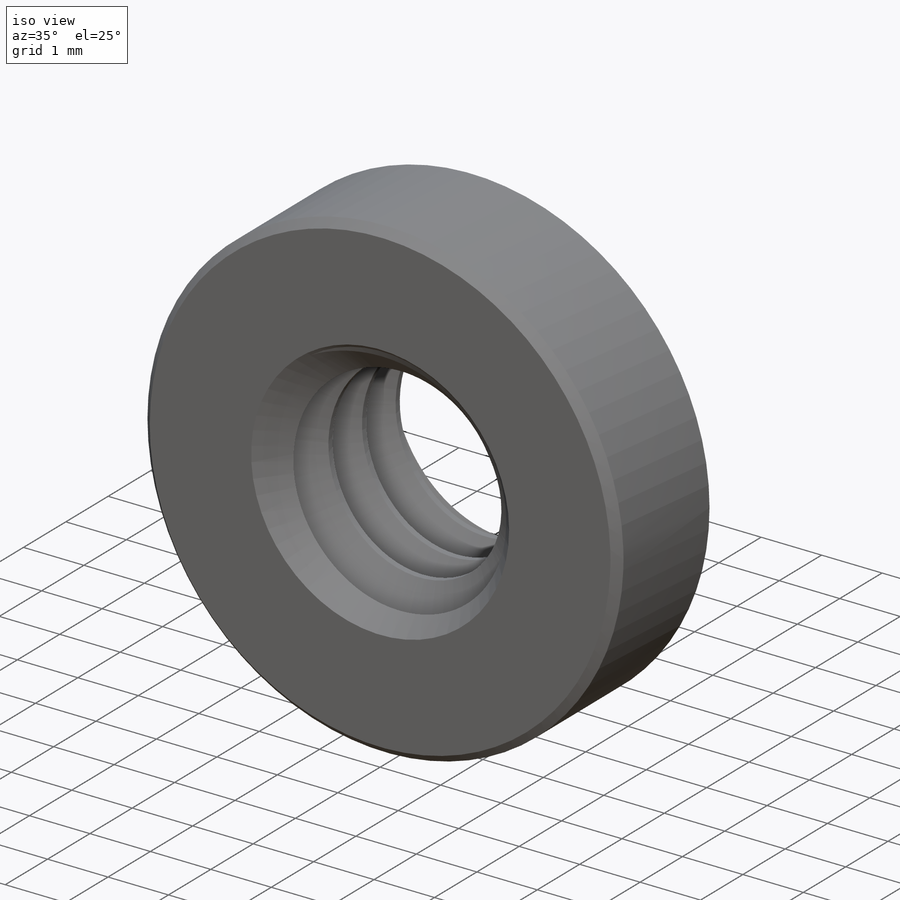
[diagram: iso view]
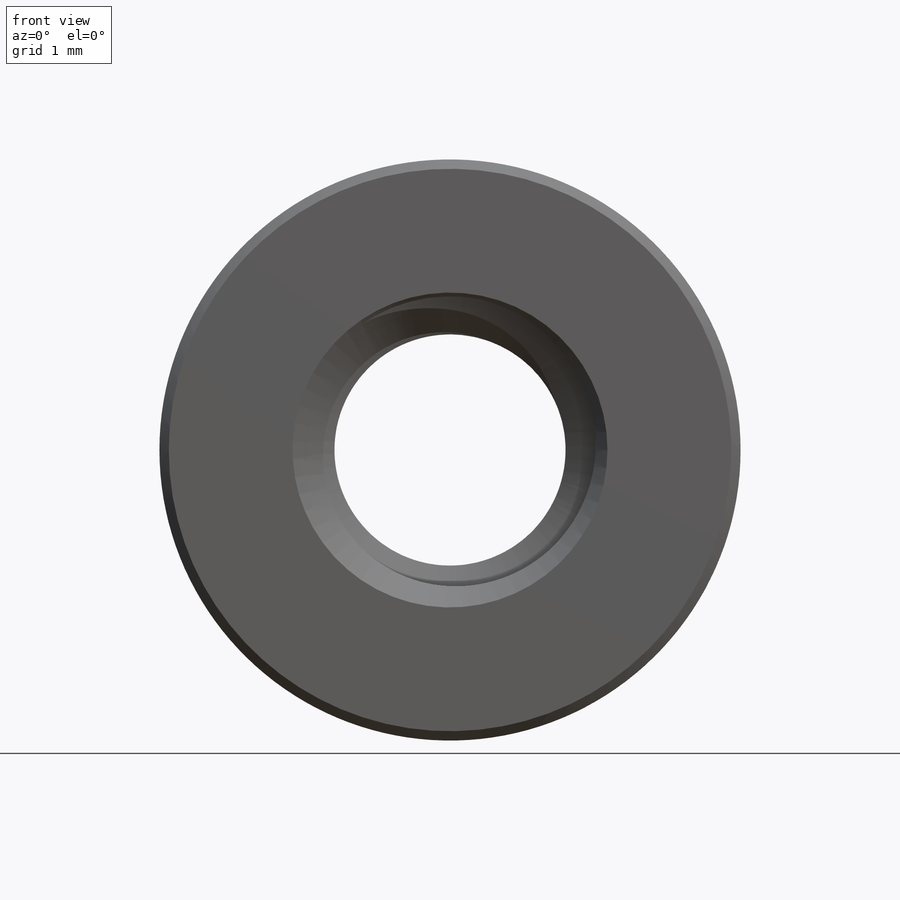
[diagram: front view]
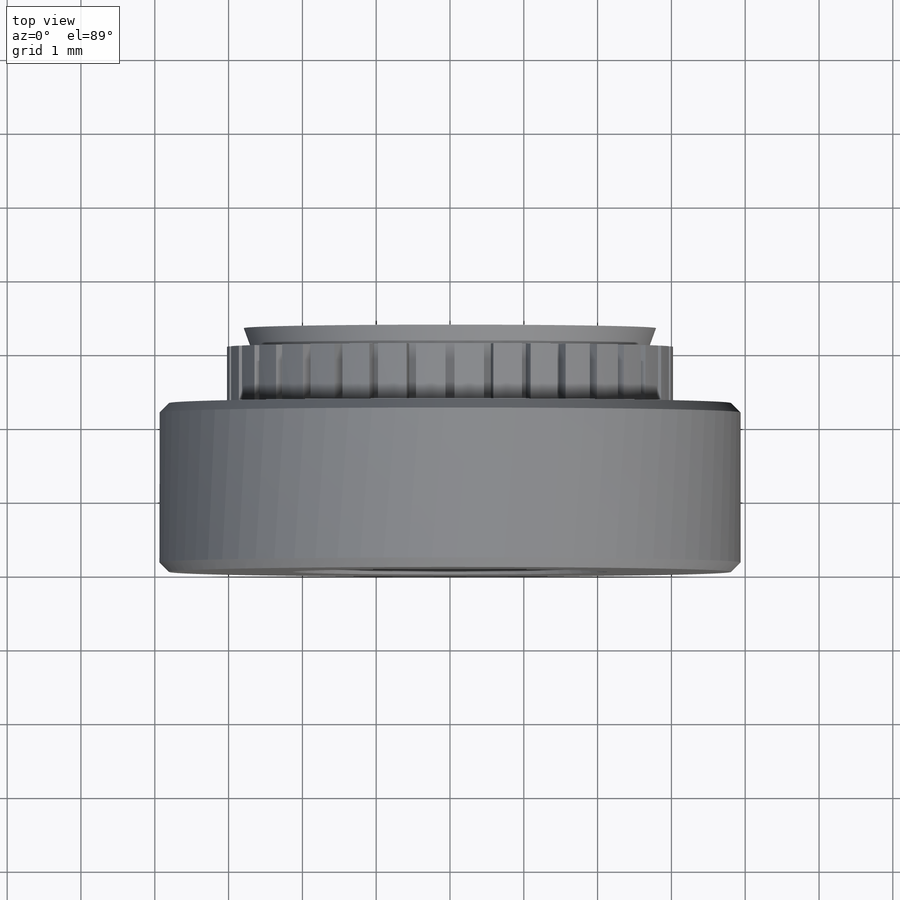
[diagram: top view]
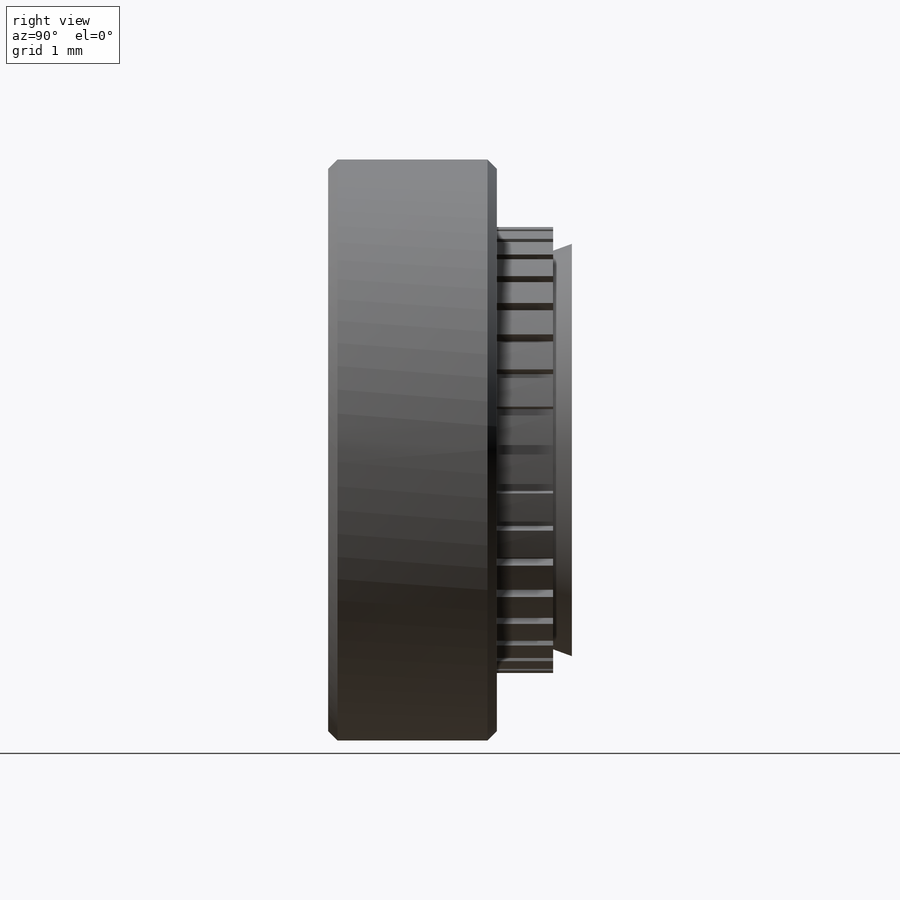
[diagram: right view]
SOLIDWORKS PART (.sldprt)
format: sldprt  version: not decoded by parser v0  size: 596,480 bytes
history: native  units: mm
features: sketch x12, cut_extrude x6, extrude x2, material x1, pattern_circular x1, chamfer x1, helix x1, sweep x1 (+13 scaffold rows collapsed)
feature tree (38):
  scaffold x13  (default folders/planes/origin — collapsed)
  material  "Material <not specified>"
  sketch  "Sketch1"  dims[A=7.874mm]
  extrude  "Extrude1"  Depth=2.286mm B=2.286mm
  sketch  "Sketch15"  dims[hole dia=5.4102mm]
  sketch  "Sketch2"  dims[C=6.3246mm hole Dia=6.3246mm D1=6.0452mm]
  extrude  "Extrude2"  Depth=1.016mm panel min.=1.016mm
  sketch  "Sketch3"  dims[D1=0.1905mm D5=0.127mm D6=1.0mm D7=5.0mm]
  pattern_circular  "CirPattern1"  Count=36 Angle=360deg
  sketch  "Sketch5"  dims[C=5.588mm D1=0.254mm]
  cut_extrude  "Cut-Extrude1"  Depth=0.254mm
  chamfer  "Chamfer2"  Distance=0.127mm Angle=45deg
  sketch  "Sketch7"  dims[Thread Od=4.1656mm]
  cut_extrude  "Cut-Extrude3"  [1 undecoded]
  sketch  "Sketch8"
  helix  "Helix/Spiral1"  Pitch=6.477mm pitch=0.79375mm
  sketch  "Sketch9"  dims[c1.D1=~0.861598mm c2.D1=60.0deg c2.D2=~0.099219mm c2.D3=~0.396875mm]
  sweep  "Sweep1"
  sketch  "Sketch10"  dims[D1=0.0mm]
  cut_extrude  "Cut-Extrude4"  [1 undecoded]
  sketch  "Sketch11"
  cut_extrude  "Cut-Extrude5"  [1 undecoded]
  sketch  "Sketch13"  dims[D1=0.0508mm]
  cut_extrude  "Cut-Extrude6"  [1 undecoded]
  sketch  "Sketch14"  dims[D1=0.0508mm]
  cut_extrude  "Cut-Extrude7"  [1 undecoded]
decode coverage: 16 of 24 modeling features carry decoded parameters
note: ~ marks probable driven/reference dimensions
note: 5 parameter values undecoded
summary: no parameter record found for 5 features
note: suppression state not decoded; provenance and decode notes live in map.json
